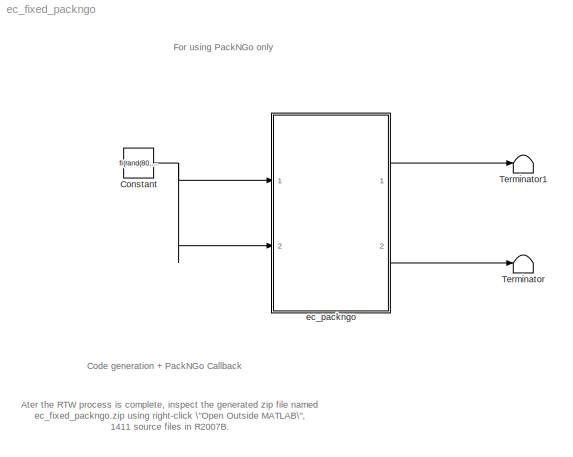
MODEL ec_fixed_packngo
KIND model
BLOCK [Constant] Constant
  FramePeriod = 80/8000
  SID = 1
  SamplingMode = Frame based
  Value = fi(rand(80,1),1,16,14);
  VectorParams1D = off
BLOCK [Terminator] Terminator
  SID = 2
BLOCK [Terminator] Terminator1
  SID = 3
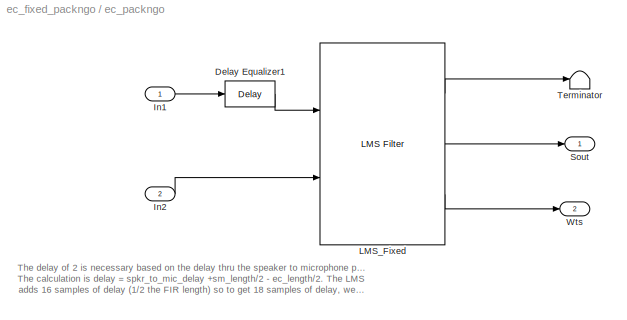
BLOCK [SubSystem] ec_packngo
  Ports = [2, 2]
  RequestExecContextInheritance = off
  SID = 4
BLOCK [Reference] ec_packngo/Delay Equalizer1  REF=dspsigops/Delay
  Ports = [1, 1]
  SID = 7
  SourceBlock = dspsigops/Delay
  SourceProductBaseCode = DS
  SourceProductName = DSP System Toolbox
  SourceType = Delay
  delay = 2
  dif_ic_for_ch = off
  dif_ic_for_dly = off
  dly_unit = Samples
  ic = 0
  ic_detail = off
  reset_popup = None
BLOCK [Inport] ec_packngo/In1
  IconDisplay = Port number
  OutDataTypeStr = fixdt(1,16,14)
  SID = 5
BLOCK [Inport] ec_packngo/In2
  IconDisplay = Port number
  OutDataTypeStr = fixdt(1,16,14)
  Port = 2
  SID = 6
BLOCK [Reference] ec_packngo/LMS_Fixed  REF=dspadpt3/LMS Filter
  Adapt = off
  Algo = LMS
  L = 32
  LockScale = off
  Ports = [2, 3]
  SID = 8
  ShowPortLabels = off
  SourceBlock = dspadpt3/LMS Filter
  SourceProductBaseCode = DS
  SourceProductName = DSP System Toolbox
  SourceType = LMS Filter
  accum2FracLength = 15
  accum2Mode = User-defined
  accumFracLength = 20
  accumMode = Binary point scaling
  accumWordLength = 16
  addnparflag = off
  firstCoeffFracLength = 15
  firstCoeffMode = Same word length as first input
  firstCoeffWordLength = 16
  ic = 0
  leakage = 1
  memoryFracLength = 15
  memoryMode = Binary point scaling
  memoryWordLength = 16
  mu = 300/32768
  overflowMode = off
  prodOutput2FracLength = 15
  prodOutput2Mode = User-defined
  prodOutput3FracLength = 15
  prodOutput3Mode = User-defined
  prodOutput4FracLength = 15
  prodOutput4Mode = User-defined
  prodOutputFracLength = 20
  prodOutputMode = Binary point scaling
  prodOutputWordLength = 16
  quotientFracLength = 20
  quotientMode = User-defined
  resetflag = None
  roundingMode = Nearest
  secondCoeffFracLength = 14
  secondCoeffMode = User-defined
  secondCoeffWordLength = 2
  stepflag = Dialog
  weights = on
BLOCK [Outport] ec_packngo/Sout
  IconDisplay = Port number
  OutDataTypeStr = fixdt(1,16,14)
  SID = 10
BLOCK [Terminator] ec_packngo/Terminator
  SID = 9
BLOCK [Outport] ec_packngo/Wts
  IconDisplay = Port number
  OutDataTypeStr = fixdt(1,16,15)
  Port = 2
  SID = 11
ANNOTATION (root): Ater the RTW process is complete, inspect the generated zip file named \nec_fixed_packngo.zip using right-click \"Open Outside MATLAB\", \n1411 source files in R2007B.
ANNOTATION (root): Code generation + PackNGo Callback
ANNOTATION (root): For using PackNGo only
ANNOTATION ec_packngo: The delay of 2 is necessary based on the delay thru the speaker to microphone pathway.\nThe calculation is delay = spkr_to_mic_delay +sm_length/2 - ec_length/2. The LMS\nadds 16 samples of delay (1/2 the FIR length) so to get 18 samples of delay, we add 2 more.
NET Constant:1 -> ec_packngo:1, ec_packngo:2
LINE ec_packngo/Delay Equalizer1:1 -> ec_packngo/LMS_Fixed:1
LINE ec_packngo/In1:1 -> ec_packngo/Delay Equalizer1:1
LINE ec_packngo/In2:1 -> ec_packngo/LMS_Fixed:2
LINE ec_packngo/LMS_Fixed:1 -> ec_packngo/Terminator:1
LINE ec_packngo/LMS_Fixed:2 -> ec_packngo/Sout:1
LINE ec_packngo/LMS_Fixed:3 -> ec_packngo/Wts:1
LINE ec_packngo:1 -> Terminator1:1
LINE ec_packngo:2 -> Terminator:1
note: NET lines group one-source signal fan-out (src -> all destinations, sorted); 1:1 wires keep LINE
